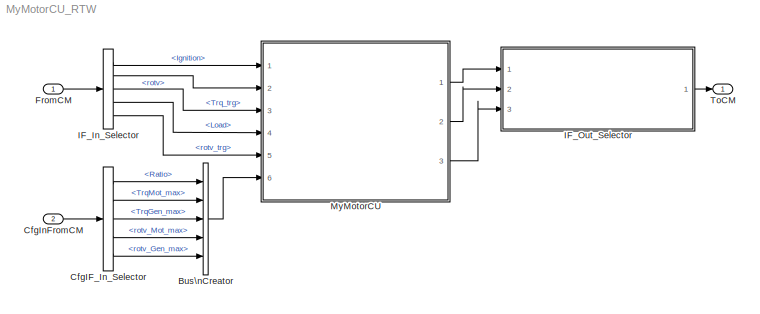
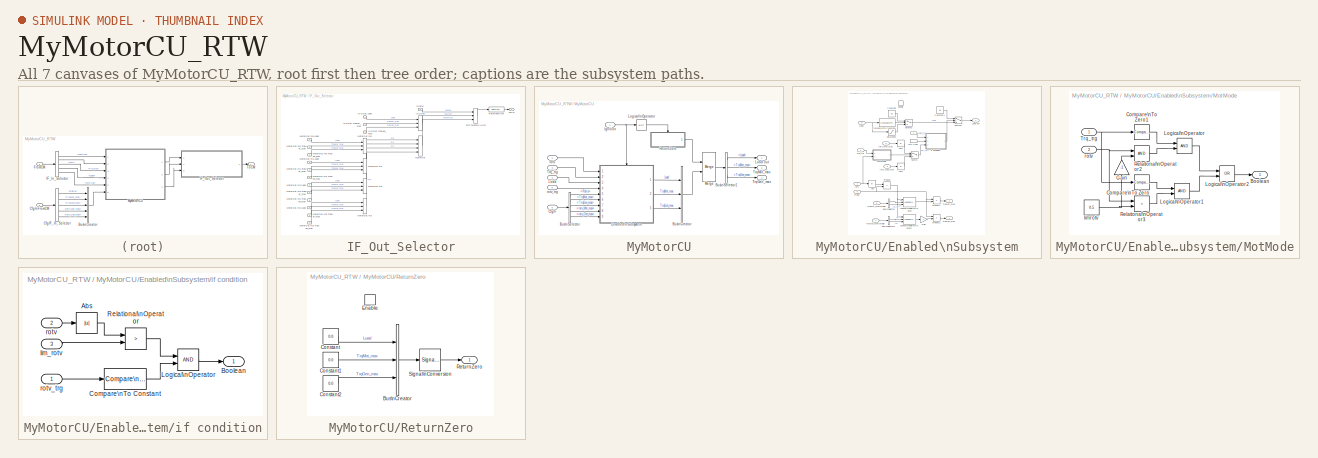
[diagram: thumbnail index - all 7 canvases of the model, root first then tree order]
MODEL MyMotorCU_RTW
KIND model
CONFIG InitFcn = vehicle = 'Car'; if ~length(which('cmcmd')), cmenv; end\nMyMotorCU_RTW_bus
CONFIG PreLoadFcn = vehicle = 'Car'; if ~length(which('cmcmd')), cmenv; end\nMyMotorCU_RTW_bus
BLOCK [BusCreator] Bus\nCreator
  DisplayOption = bar
  InheritFromInputs = on
  Inputs = 5
  Ports = [5, 1]
  SID = 34
BLOCK [BusSelector] CfgIF_In_Selector
  OutputSignals = ISG.Ratio,ISG.TrqMot_max,ISG.TrqGen_max,ISG.rotv_Mot_max,ISG.rotv_Gen_max
  Ports = [1, 5]
  SID = 9
BLOCK [Inport] CfgInFromCM
  OutDataTypeStr = Bus: cmPTMotorCUCfgIn
  Port = 2
  SID = 8
BLOCK [Inport] FromCM
  OutDataTypeStr = Bus: cmPTMotorCUIn
  SID = 1
BLOCK [BusSelector] IF_In_Selector
  OutputSignals = Ignition,ISGIn.rotv,ISGIn.Trq_trg,ISGOut.Load,ISGIn.rotv_trg
  Ports = [1, 5]
  SID = 2
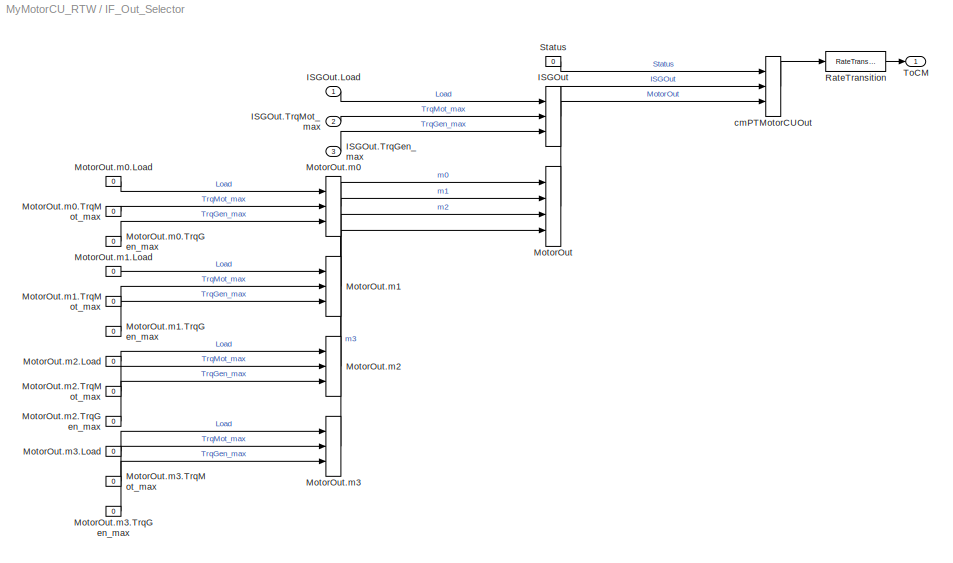
BLOCK [SubSystem] IF_Out_Selector
  OpenFcn = cmSignalSelect('SignalSelection_CB',gcb)
  Ports = [3, 1]
  RequestExecContextInheritance = off
  SID = 5
  UserData = DataTag0
  UserDataPersistent = on
BLOCK [BusCreator] IF_Out_Selector/ISGOut
  InheritFromInputs = on
  Inputs = 3
  Ports = [3, 1]
  SID = 13
BLOCK [Inport] IF_Out_Selector/ISGOut.Load
  SID = 113
BLOCK [Inport] IF_Out_Selector/ISGOut.TrqGen_max
  Port = 3
  SID = 115
BLOCK [Inport] IF_Out_Selector/ISGOut.TrqMot_max
  Port = 2
  SID = 114
BLOCK [BusCreator] IF_Out_Selector/MotorOut
  InheritFromInputs = on
  Inputs = 4
  Ports = [4, 1]
  SID = 17
BLOCK [BusCreator] IF_Out_Selector/MotorOut.m0
  InheritFromInputs = on
  Inputs = 3
  Ports = [3, 1]
  SID = 18
BLOCK [Constant] IF_Out_Selector/MotorOut.m0.Load
  SID = 19
  Value = 0
BLOCK [Constant] IF_Out_Selector/MotorOut.m0.TrqGen_max
  SID = 21
  Value = 0
BLOCK [Constant] IF_Out_Selector/MotorOut.m0.TrqMot_max
  SID = 20
  Value = 0
BLOCK [BusCreator] IF_Out_Selector/MotorOut.m1
  InheritFromInputs = on
  Inputs = 3
  Ports = [3, 1]
  SID = 22
BLOCK [Constant] IF_Out_Selector/MotorOut.m1.Load
  SID = 23
  Value = 0
BLOCK [Constant] IF_Out_Selector/MotorOut.m1.TrqGen_max
  SID = 25
  Value = 0
BLOCK [Constant] IF_Out_Selector/MotorOut.m1.TrqMot_max
  SID = 24
  Value = 0
BLOCK [BusCreator] IF_Out_Selector/MotorOut.m2
  InheritFromInputs = on
  Inputs = 3
  Ports = [3, 1]
  SID = 26
BLOCK [Constant] IF_Out_Selector/MotorOut.m2.Load
  SID = 27
  Value = 0
BLOCK [Constant] IF_Out_Selector/MotorOut.m2.TrqGen_max
  SID = 29
  Value = 0
BLOCK [Constant] IF_Out_Selector/MotorOut.m2.TrqMot_max
  SID = 28
  Value = 0
BLOCK [BusCreator] IF_Out_Selector/MotorOut.m3
  InheritFromInputs = on
  Inputs = 3
  Ports = [3, 1]
  SID = 30
BLOCK [Constant] IF_Out_Selector/MotorOut.m3.Load
  SID = 31
  Value = 0
BLOCK [Constant] IF_Out_Selector/MotorOut.m3.TrqGen_max
  SID = 33
  Value = 0
BLOCK [Constant] IF_Out_Selector/MotorOut.m3.TrqMot_max
  SID = 32
  Value = 0
BLOCK [RateTransition] IF_Out_Selector/RateTransition
  OutPortSampleTime = str2num(get_param(bdroot,'FixedStep'))
  SID = 6
BLOCK [Constant] IF_Out_Selector/Status
  SID = 12
  Value = 0
BLOCK [Outport] IF_Out_Selector/ToCM
  SID = 7
  VectorParamsAs1DForOutWhenUnconnected = off
BLOCK [BusCreator] IF_Out_Selector/cmPTMotorCUOut
  InheritFromInputs = on
  Inputs = 3
  Ports = [3, 1]
  SID = 11
BLOCK [SubSystem] MyMotorCU
  Ports = [6, 3]
  RequestExecContextInheritance = off
  SID = 35
BLOCK [BusCreator] MyMotorCU/Bus\nCreator
  DisplayOption = bar
  InheritFromInputs = on
  Inputs = 3
  Ports = [3, 1]
  SID = 42
BLOCK [BusSelector] MyMotorCU/Bus\nSelector
  OutputSignals = Ratio,TrqMot_max,TrqGen_max,rotv_Mot_max,rotv_Gen_max
  Ports = [1, 5]
  SID = 43
BLOCK [BusSelector] MyMotorCU/Bus\nSelector1
  OutputSignals = Load,TrqMot_max,TrqGen_max
  Ports = [1, 3]
  SID = 44
BLOCK [Inport] MyMotorCU/CfgIF
  Port = 6
  SID = 41
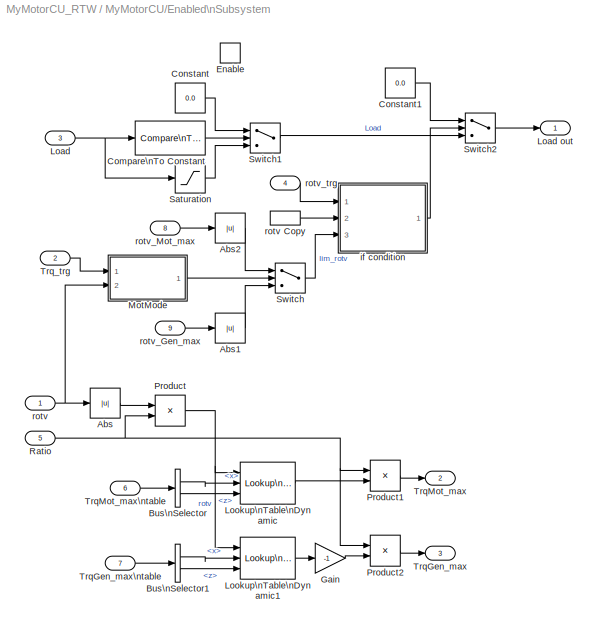
BLOCK [SubSystem] MyMotorCU/Enabled\nSubsystem
  Ports = [9, 3, 1]
  RequestExecContextInheritance = off
  SID = 45
  TreatAsAtomicUnit = on
BLOCK [Abs] MyMotorCU/Enabled\nSubsystem/Abs
  SID = 56
  SaturateOnIntegerOverflow = off
BLOCK [Abs] MyMotorCU/Enabled\nSubsystem/Abs1
  SID = 57
  SaturateOnIntegerOverflow = off
BLOCK [Abs] MyMotorCU/Enabled\nSubsystem/Abs2
  SID = 58
  SaturateOnIntegerOverflow = off
BLOCK [BusSelector] MyMotorCU/Enabled\nSubsystem/Bus\nSelector
  OutputSignals = x,z
  Ports = [1, 2]
  SID = 59
BLOCK [BusSelector] MyMotorCU/Enabled\nSubsystem/Bus\nSelector1
  OutputSignals = x,z
  Ports = [1, 2]
  SID = 60
BLOCK [Reference] MyMotorCU/Enabled\nSubsystem/Compare\nTo Constant  REF=simulink/Logic and Bit\nOperations/Compare\nTo Constant
  FunctionWithSeparateData = off
  LogicOutDataTypeMode = uint8
  Ports = [1, 1]
  RTWMemSecDataConstants = Inherit from model
  RTWMemSecDataInternal = Inherit from model
  RTWMemSecDataParameters = Inherit from model
  RTWMemSecFuncExecute = Inherit from model
  RTWMemSecFuncInitTerm = Inherit from model
  SID = 61
  ShowPortLabels = FromPortIcon
  SourceBlock = simulink/Logic and Bit\nOperations/Compare\nTo Constant
  SourceProductBaseCode = SL
  SourceType = Compare To Constant
  SystemSampleTime = -1
  ZeroCross = off
  const = -99999
  relop = ==
BLOCK [Constant] MyMotorCU/Enabled\nSubsystem/Constant
  SID = 62
  Value = 0.0
BLOCK [Constant] MyMotorCU/Enabled\nSubsystem/Constant1
  SID = 63
  Value = 0.0
BLOCK [EnablePort] MyMotorCU/Enabled\nSubsystem/Enable
  Ports = []
  SID = 55
BLOCK [Gain] MyMotorCU/Enabled\nSubsystem/Gain
  Gain = -1
  SID = 64
BLOCK [Inport] MyMotorCU/Enabled\nSubsystem/Load
  Port = 3
  SID = 48
BLOCK [Outport] MyMotorCU/Enabled\nSubsystem/Load out
  SID = 97
  VectorParamsAs1DForOutWhenUnconnected = off
BLOCK [Reference] MyMotorCU/Enabled\nSubsystem/Lookup\nTable\nDynamic  REF=simulink/Lookup\nTables/Lookup\nTable\nDynamic
  DoSatur = off
  LockScale = off
  LookUpMeth = Interpolation-Use End Values
  OutDataType = float('double')
  OutDataTypeStr = float('double')
  OutScaling = 2^-10
  OutputDataTypeScalingMode = Specify via dialog
  Ports = [3, 1]
  RndMeth = Floor
  SID = 65
  SourceBlock = simulink/Lookup\nTables/Lookup\nTable\nDynamic
  SourceProductBaseCode = SL
  SourceType = Lookup Table Dynamic
BLOCK [Reference] MyMotorCU/Enabled\nSubsystem/Lookup\nTable\nDynamic1  REF=simulink/Lookup\nTables/Lookup\nTable\nDynamic
  DoSatur = off
  LockScale = off
  LookUpMeth = Interpolation-Use End Values
  OutDataType = float('double')
  OutDataTypeStr = float('double')
  OutScaling = 2^-10
  OutputDataTypeScalingMode = Specify via dialog
  Ports = [3, 1]
  RndMeth = Floor
  SID = 66
  SourceBlock = simulink/Lookup\nTables/Lookup\nTable\nDynamic
  SourceProductBaseCode = SL
  SourceType = Lookup Table Dynamic
BLOCK [SubSystem] MyMotorCU/Enabled\nSubsystem/MotMode
  Ports = [2, 1]
  RequestExecContextInheritance = off
  SID = 67
BLOCK [Outport] MyMotorCU/Enabled\nSubsystem/MotMode/Boolean
  SID = 79
  VectorParamsAs1DForOutWhenUnconnected = off
BLOCK [Reference] MyMotorCU/Enabled\nSubsystem/MotMode/Compare\nTo Zero  REF=simulink/Logic and Bit\nOperations/Compare\nTo Zero
  FunctionWithSeparateData = off
  LogicOutDataTypeMode = uint8
  Ports = [1, 1]
  RTWMemSecDataConstants = Inherit from model
  RTWMemSecDataInternal = Inherit from model
  RTWMemSecDataParameters = Inherit from model
  RTWMemSecFuncExecute = Inherit from model
  RTWMemSecFuncInitTerm = Inherit from model
  SID = 70
  ShowPortLabels = FromPortIcon
  SourceBlock = simulink/Logic and Bit\nOperations/Compare\nTo Zero
  SourceProductBaseCode = SL
  SourceType = Compare To Zero
  SystemSampleTime = -1
  ZeroCross = off
  relop = <
BLOCK [Reference] MyMotorCU/Enabled\nSubsystem/MotMode/Compare\nTo Zero1  REF=simulink/Logic and Bit\nOperations/Compare\nTo Zero
  FunctionWithSeparateData = off
  LogicOutDataTypeMode = uint8
  Ports = [1, 1]
  RTWMemSecDataConstants = Inherit from model
  RTWMemSecDataInternal = Inherit from model
  RTWMemSecDataParameters = Inherit from model
  RTWMemSecFuncExecute = Inherit from model
  RTWMemSecFuncInitTerm = Inherit from model
  SID = 71
  ShowPortLabels = FromPortIcon
  SourceBlock = simulink/Logic and Bit\nOperations/Compare\nTo Zero
  SourceProductBaseCode = SL
  SourceType = Compare To Zero
  SystemSampleTime = -1
  ZeroCross = off
  relop = >=
BLOCK [Gain] MyMotorCU/Enabled\nSubsystem/MotMode/Gain
  Gain = -1
  NameLocation = right
  SID = 72
BLOCK [Logic] MyMotorCU/Enabled\nSubsystem/MotMode/Logical\nOperator
  AllPortsSameDT = off
  OutDataTypeStr = boolean
  Ports = [2, 1]
  SID = 73
BLOCK [Logic] MyMotorCU/Enabled\nSubsystem/MotMode/Logical\nOperator1
  AllPortsSameDT = off
  OutDataTypeStr = boolean
  Ports = [2, 1]
  SID = 74
BLOCK [Logic] MyMotorCU/Enabled\nSubsystem/MotMode/Logical\nOperator2
  AllPortsSameDT = off
  Operator = OR
  OutDataTypeStr = boolean
  Ports = [2, 1]
  SID = 75
BLOCK [RelationalOperator] MyMotorCU/Enabled\nSubsystem/MotMode/Relational\nOperator2
  InputSameDT = off
  OutDataTypeStr = boolean
  Ports = [2, 1]
  SID = 76
BLOCK [RelationalOperator] MyMotorCU/Enabled\nSubsystem/MotMode/Relational\nOperator3
  InputSameDT = off
  Operator = <
  OutDataTypeStr = boolean
  Ports = [2, 1]
  SID = 77
BLOCK [Inport] MyMotorCU/Enabled\nSubsystem/MotMode/Trq_trg
  SID = 68
BLOCK [Constant] MyMotorCU/Enabled\nSubsystem/MotMode/limrotv
  SID = 78
  Value = 0.5
BLOCK [Inport] MyMotorCU/Enabled\nSubsystem/MotMode/rotv
  Port = 2
  SID = 69
BLOCK [Product] MyMotorCU/Enabled\nSubsystem/Product
  Ports = [2, 1]
  RndMeth = Zero
  SID = 80
BLOCK [Product] MyMotorCU/Enabled\nSubsystem/Product1
  Ports = [2, 1]
  RndMeth = Zero
  SID = 81
BLOCK [Product] MyMotorCU/Enabled\nSubsystem/Product2
  Ports = [2, 1]
  RndMeth = Zero
  SID = 82
BLOCK [Inport] MyMotorCU/Enabled\nSubsystem/Ratio
  Port = 5
  SID = 50
BLOCK [Saturate] MyMotorCU/Enabled\nSubsystem/Saturation
  LowerLimit = -1
  SID = 83
  UpperLimit = 1
BLOCK [Switch] MyMotorCU/Enabled\nSubsystem/Switch
  Criteria = u2 ~= 0
  InputSameDT = off
  SID = 84
  SaturateOnIntegerOverflow = off
BLOCK [Switch] MyMotorCU/Enabled\nSubsystem/Switch1
  Criteria = u2 ~= 0
  InputSameDT = off
  SID = 85
  SaturateOnIntegerOverflow = off
BLOCK [Switch] MyMotorCU/Enabled\nSubsystem/Switch2
  Criteria = u2 ~= 0
  InputSameDT = off
  SID = 86
  SaturateOnIntegerOverflow = off
BLOCK [Outport] MyMotorCU/Enabled\nSubsystem/TrqGen_max
  Port = 3
  SID = 99
  VectorParamsAs1DForOutWhenUnconnected = off
BLOCK [Inport] MyMotorCU/Enabled\nSubsystem/TrqGen_max\ntable
  Port = 7
  SID = 52
BLOCK [Outport] MyMotorCU/Enabled\nSubsystem/TrqMot_max
  Port = 2
  SID = 98
  VectorParamsAs1DForOutWhenUnconnected = off
BLOCK [Inport] MyMotorCU/Enabled\nSubsystem/TrqMot_max\ntable
  Port = 6
  SID = 51
BLOCK [Inport] MyMotorCU/Enabled\nSubsystem/Trq_trg
  Port = 2
  SID = 47
BLOCK [SubSystem] MyMotorCU/Enabled\nSubsystem/if condition
  Ports = [3, 1]
  RequestExecContextInheritance = off
  SID = 87
BLOCK [Abs] MyMotorCU/Enabled\nSubsystem/if condition/Abs
  SID = 91
  SaturateOnIntegerOverflow = off
BLOCK [Outport] MyMotorCU/Enabled\nSubsystem/if condition/Boolean
  SID = 95
  VectorParamsAs1DForOutWhenUnconnected = off
BLOCK [Reference] MyMotorCU/Enabled\nSubsystem/if condition/Compare\nTo Constant  REF=simulink/Logic and Bit\nOperations/Compare\nTo Constant
  FunctionWithSeparateData = off
  LogicOutDataTypeMode = boolean
  Ports = [1, 1]
  RTWMemSecDataConstants = Inherit from model
  RTWMemSecDataInternal = Inherit from model
  RTWMemSecDataParameters = Inherit from model
  RTWMemSecFuncExecute = Inherit from model
  RTWMemSecFuncInitTerm = Inherit from model
  SID = 92
  ShowPortLabels = FromPortIcon
  SourceBlock = simulink/Logic and Bit\nOperations/Compare\nTo Constant
  SourceProductBaseCode = SL
  SourceType = Compare To Constant
  SystemSampleTime = -1
  ZeroCross = off
  const = -99999
  relop = ==
BLOCK [Logic] MyMotorCU/Enabled\nSubsystem/if condition/Logical\nOperator
  AllPortsSameDT = off
  OutDataTypeStr = boolean
  Ports = [2, 1]
  SID = 93
BLOCK [RelationalOperator] MyMotorCU/Enabled\nSubsystem/if condition/Relational\nOperator
  InputSameDT = off
  Operator = >
  OutDataTypeStr = boolean
  Ports = [2, 1]
  SID = 94
BLOCK [Inport] MyMotorCU/Enabled\nSubsystem/if condition/lim_rotv
  Port = 3
  SID = 90
BLOCK [Inport] MyMotorCU/Enabled\nSubsystem/if condition/rotv
  Port = 2
  SID = 89
BLOCK [Inport] MyMotorCU/Enabled\nSubsystem/if condition/rotv_trg
  SID = 88
BLOCK [Inport] MyMotorCU/Enabled\nSubsystem/rotv
  SID = 46
BLOCK [InportShadow] MyMotorCU/Enabled\nSubsystem/rotv Copy
  SID = 96
BLOCK [Inport] MyMotorCU/Enabled\nSubsystem/rotv_Gen_max
  Port = 9
  SID = 54
BLOCK [Inport] MyMotorCU/Enabled\nSubsystem/rotv_Mot_max
  Port = 8
  SID = 53
BLOCK [Inport] MyMotorCU/Enabled\nSubsystem/rotv_trg
  Port = 4
  SID = 49
BLOCK [Inport] MyMotorCU/Ignition
  SID = 36
BLOCK [Inport] MyMotorCU/Load
  Port = 4
  SID = 39
BLOCK [Outport] MyMotorCU/Load out
  SID = 110
  VectorParamsAs1DForOutWhenUnconnected = off
BLOCK [Logic] MyMotorCU/Logical\nOperator
  AllPortsSameDT = off
  Operator = NOT
  OutDataTypeStr = boolean
  Ports = [1, 1]
  SID = 100
BLOCK [Merge] MyMotorCU/Merge
  Ports = [2, 1]
  SID = 101
BLOCK [SubSystem] MyMotorCU/ReturnZero
  Ports = [0, 1, 1]
  RequestExecContextInheritance = off
  SID = 102
  TreatAsAtomicUnit = on
BLOCK [BusCreator] MyMotorCU/ReturnZero/Bus\nCreator
  DisplayOption = bar
  InheritFromInputs = on
  Inputs = 3
  Ports = [3, 1]
  SID = 104
BLOCK [Constant] MyMotorCU/ReturnZero/Constant
  SID = 105
  Value = 0.0
BLOCK [Constant] MyMotorCU/ReturnZero/Constant1
  SID = 106
  Value = 0.0
BLOCK [Constant] MyMotorCU/ReturnZero/Constant2
  SID = 107
  Value = 0.0
BLOCK [EnablePort] MyMotorCU/ReturnZero/Enable
  Ports = []
  SID = 103
BLOCK [Outport] MyMotorCU/ReturnZero/ReturnZero
  SID = 109
  VectorParamsAs1DForOutWhenUnconnected = off
BLOCK [SignalConversion] MyMotorCU/ReturnZero/Signal\nConversion
  ConversionOutput = Bus copy
  OverrideOpt = off
  SID = 108
BLOCK [Outport] MyMotorCU/TrqGen_max
  Port = 3
  SID = 112
  VectorParamsAs1DForOutWhenUnconnected = off
BLOCK [Outport] MyMotorCU/TrqMot_max
  Port = 2
  SID = 111
  VectorParamsAs1DForOutWhenUnconnected = off
BLOCK [Inport] MyMotorCU/Trq_trg
  Port = 3
  SID = 38
BLOCK [Inport] MyMotorCU/rotv
  Port = 2
  SID = 37
BLOCK [Inport] MyMotorCU/rotv_trg
  Port = 5
  SID = 40
BLOCK [Outport] ToCM
  OutDataTypeStr = Bus: cmPTMotorCUOut
  SID = 4
  VectorParamsAs1DForOutWhenUnconnected = off
LINE Bus\nCreator:1 -> MyMotorCU:6
LINE CfgIF_In_Selector:1 -> Bus\nCreator:1
LINE CfgIF_In_Selector:2 -> Bus\nCreator:2
LINE CfgIF_In_Selector:3 -> Bus\nCreator:3
LINE CfgIF_In_Selector:4 -> Bus\nCreator:4
LINE CfgIF_In_Selector:5 -> Bus\nCreator:5
LINE CfgInFromCM:1 -> CfgIF_In_Selector:1
LINE FromCM:1 -> IF_In_Selector:1
LINE IF_In_Selector:1 -> MyMotorCU:1
LINE IF_In_Selector:2 -> MyMotorCU:2
LINE IF_In_Selector:3 -> MyMotorCU:3
LINE IF_In_Selector:4 -> MyMotorCU:4
LINE IF_In_Selector:5 -> MyMotorCU:5
LINE IF_Out_Selector/ISGOut.Load:1 -> IF_Out_Selector/ISGOut:1
LINE IF_Out_Selector/ISGOut.TrqGen_max:1 -> IF_Out_Selector/ISGOut:3
LINE IF_Out_Selector/ISGOut.TrqMot_max:1 -> IF_Out_Selector/ISGOut:2
LINE IF_Out_Selector/ISGOut:1 -> IF_Out_Selector/cmPTMotorCUOut:2
LINE IF_Out_Selector/MotorOut.m0.Load:1 -> IF_Out_Selector/MotorOut.m0:1
LINE IF_Out_Selector/MotorOut.m0.TrqGen_max:1 -> IF_Out_Selector/MotorOut.m0:3
LINE IF_Out_Selector/MotorOut.m0.TrqMot_max:1 -> IF_Out_Selector/MotorOut.m0:2
LINE IF_Out_Selector/MotorOut.m0:1 -> IF_Out_Selector/MotorOut:1
LINE IF_Out_Selector/MotorOut.m1.Load:1 -> IF_Out_Selector/MotorOut.m1:1
LINE IF_Out_Selector/MotorOut.m1.TrqGen_max:1 -> IF_Out_Selector/MotorOut.m1:3
LINE IF_Out_Selector/MotorOut.m1.TrqMot_max:1 -> IF_Out_Selector/MotorOut.m1:2
LINE IF_Out_Selector/MotorOut.m1:1 -> IF_Out_Selector/MotorOut:2
LINE IF_Out_Selector/MotorOut.m2.Load:1 -> IF_Out_Selector/MotorOut.m2:1
LINE IF_Out_Selector/MotorOut.m2.TrqGen_max:1 -> IF_Out_Selector/MotorOut.m2:3
LINE IF_Out_Selector/MotorOut.m2.TrqMot_max:1 -> IF_Out_Selector/MotorOut.m2:2
LINE IF_Out_Selector/MotorOut.m2:1 -> IF_Out_Selector/MotorOut:3
LINE IF_Out_Selector/MotorOut.m3.Load:1 -> IF_Out_Selector/MotorOut.m3:1
LINE IF_Out_Selector/MotorOut.m3.TrqGen_max:1 -> IF_Out_Selector/MotorOut.m3:3
LINE IF_Out_Selector/MotorOut.m3.TrqMot_max:1 -> IF_Out_Selector/MotorOut.m3:2
LINE IF_Out_Selector/MotorOut.m3:1 -> IF_Out_Selector/MotorOut:4
LINE IF_Out_Selector/MotorOut:1 -> IF_Out_Selector/cmPTMotorCUOut:3
LINE IF_Out_Selector/RateTransition:1 -> IF_Out_Selector/ToCM:1
LINE IF_Out_Selector/Status:1 -> IF_Out_Selector/cmPTMotorCUOut:1
LINE IF_Out_Selector/cmPTMotorCUOut:1 -> IF_Out_Selector/RateTransition:1
LINE IF_Out_Selector:1 -> ToCM:1
LINE MyMotorCU/Bus\nCreator:1 -> MyMotorCU/Merge:2
LINE MyMotorCU/Bus\nSelector1:1 -> MyMotorCU/Load out:1
LINE MyMotorCU/Bus\nSelector1:2 -> MyMotorCU/TrqMot_max:1
LINE MyMotorCU/Bus\nSelector1:3 -> MyMotorCU/TrqGen_max:1
LINE MyMotorCU/Bus\nSelector:1 -> MyMotorCU/Enabled\nSubsystem:5
LINE MyMotorCU/Bus\nSelector:2 -> MyMotorCU/Enabled\nSubsystem:6
LINE MyMotorCU/Bus\nSelector:3 -> MyMotorCU/Enabled\nSubsystem:7
LINE MyMotorCU/Bus\nSelector:4 -> MyMotorCU/Enabled\nSubsystem:8
LINE MyMotorCU/Bus\nSelector:5 -> MyMotorCU/Enabled\nSubsystem:9
LINE MyMotorCU/CfgIF:1 -> MyMotorCU/Bus\nSelector:1
LINE MyMotorCU/Enabled\nSubsystem/Abs1:1 -> MyMotorCU/Enabled\nSubsystem/Switch:3
LINE MyMotorCU/Enabled\nSubsystem/Abs2:1 -> MyMotorCU/Enabled\nSubsystem/Switch:1
LINE MyMotorCU/Enabled\nSubsystem/Abs:1 -> MyMotorCU/Enabled\nSubsystem/Product:1
LINE MyMotorCU/Enabled\nSubsystem/Bus\nSelector1:1 -> MyMotorCU/Enabled\nSubsystem/Lookup\nTable\nDynamic1:2
LINE MyMotorCU/Enabled\nSubsystem/Bus\nSelector1:2 -> MyMotorCU/Enabled\nSubsystem/Lookup\nTable\nDynamic1:3
LINE MyMotorCU/Enabled\nSubsystem/Bus\nSelector:1 -> MyMotorCU/Enabled\nSubsystem/Lookup\nTable\nDynamic:2
LINE MyMotorCU/Enabled\nSubsystem/Bus\nSelector:2 -> MyMotorCU/Enabled\nSubsystem/Lookup\nTable\nDynamic:3
LINE MyMotorCU/Enabled\nSubsystem/Compare\nTo Constant:1 -> MyMotorCU/Enabled\nSubsystem/Switch1:2
LINE MyMotorCU/Enabled\nSubsystem/Constant1:1 -> MyMotorCU/Enabled\nSubsystem/Switch2:1
LINE MyMotorCU/Enabled\nSubsystem/Constant:1 -> MyMotorCU/Enabled\nSubsystem/Switch1:1
LINE MyMotorCU/Enabled\nSubsystem/Gain:1 -> MyMotorCU/Enabled\nSubsystem/Product2:2
NET MyMotorCU/Enabled\nSubsystem/Load:1 -> MyMotorCU/Enabled\nSubsystem/Compare\nTo Constant:1, MyMotorCU/Enabled\nSubsystem/Saturation:1
LINE MyMotorCU/Enabled\nSubsystem/Lookup\nTable\nDynamic1:1 -> MyMotorCU/Enabled\nSubsystem/Gain:1
LINE MyMotorCU/Enabled\nSubsystem/Lookup\nTable\nDynamic:1 -> MyMotorCU/Enabled\nSubsystem/Product1:2
LINE MyMotorCU/Enabled\nSubsystem/MotMode/Compare\nTo Zero1:1 -> MyMotorCU/Enabled\nSubsystem/MotMode/Logical\nOperator:1
LINE MyMotorCU/Enabled\nSubsystem/MotMode/Compare\nTo Zero:1 -> MyMotorCU/Enabled\nSubsystem/MotMode/Logical\nOperator1:1
LINE MyMotorCU/Enabled\nSubsystem/MotMode/Gain:1 -> MyMotorCU/Enabled\nSubsystem/MotMode/Relational\nOperator2:2
LINE MyMotorCU/Enabled\nSubsystem/MotMode/Logical\nOperator1:1 -> MyMotorCU/Enabled\nSubsystem/MotMode/Logical\nOperator2:2
LINE MyMotorCU/Enabled\nSubsystem/MotMode/Logical\nOperator2:1 -> MyMotorCU/Enabled\nSubsystem/MotMode/Boolean:1
LINE MyMotorCU/Enabled\nSubsystem/MotMode/Logical\nOperator:1 -> MyMotorCU/Enabled\nSubsystem/MotMode/Logical\nOperator2:1
LINE MyMotorCU/Enabled\nSubsystem/MotMode/Relational\nOperator2:1 -> MyMotorCU/Enabled\nSubsystem/MotMode/Logical\nOperator:2
LINE MyMotorCU/Enabled\nSubsystem/MotMode/Relational\nOperator3:1 -> MyMotorCU/Enabled\nSubsystem/MotMode/Logical\nOperator1:2
NET MyMotorCU/Enabled\nSubsystem/MotMode/Trq_trg:1 -> MyMotorCU/Enabled\nSubsystem/MotMode/Compare\nTo Zero1:1, MyMotorCU/Enabled\nSubsystem/MotMode/Compare\nTo Zero:1
NET MyMotorCU/Enabled\nSubsystem/MotMode/limrotv:1 -> MyMotorCU/Enabled\nSubsystem/MotMode/Gain:1, MyMotorCU/Enabled\nSubsystem/MotMode/Relational\nOperator3:2
NET MyMotorCU/Enabled\nSubsystem/MotMode/rotv:1 -> MyMotorCU/Enabled\nSubsystem/MotMode/Relational\nOperator2:1, MyMotorCU/Enabled\nSubsystem/MotMode/Relational\nOperator3:1
LINE MyMotorCU/Enabled\nSubsystem/MotMode:1 -> MyMotorCU/Enabled\nSubsystem/Switch:2
LINE MyMotorCU/Enabled\nSubsystem/Product1:1 -> MyMotorCU/Enabled\nSubsystem/TrqMot_max:1
LINE MyMotorCU/Enabled\nSubsystem/Product2:1 -> MyMotorCU/Enabled\nSubsystem/TrqGen_max:1
NET MyMotorCU/Enabled\nSubsystem/Product:1 -> MyMotorCU/Enabled\nSubsystem/Lookup\nTable\nDynamic1:1, MyMotorCU/Enabled\nSubsystem/Lookup\nTable\nDynamic:1
NET MyMotorCU/Enabled\nSubsystem/Ratio:1 -> MyMotorCU/Enabled\nSubsystem/Product1:1, MyMotorCU/Enabled\nSubsystem/Product2:1, MyMotorCU/Enabled\nSubsystem/Product:2
LINE MyMotorCU/Enabled\nSubsystem/Saturation:1 -> MyMotorCU/Enabled\nSubsystem/Switch1:3
LINE MyMotorCU/Enabled\nSubsystem/Switch1:1 -> MyMotorCU/Enabled\nSubsystem/Switch2:3
LINE MyMotorCU/Enabled\nSubsystem/Switch2:1 -> MyMotorCU/Enabled\nSubsystem/Load out:1
LINE MyMotorCU/Enabled\nSubsystem/Switch:1 -> MyMotorCU/Enabled\nSubsystem/if condition:3
LINE MyMotorCU/Enabled\nSubsystem/TrqGen_max\ntable:1 -> MyMotorCU/Enabled\nSubsystem/Bus\nSelector1:1
LINE MyMotorCU/Enabled\nSubsystem/TrqMot_max\ntable:1 -> MyMotorCU/Enabled\nSubsystem/Bus\nSelector:1
LINE MyMotorCU/Enabled\nSubsystem/Trq_trg:1 -> MyMotorCU/Enabled\nSubsystem/MotMode:1
LINE MyMotorCU/Enabled\nSubsystem/if condition/Abs:1 -> MyMotorCU/Enabled\nSubsystem/if condition/Relational\nOperator:1
LINE MyMotorCU/Enabled\nSubsystem/if condition/Compare\nTo Constant:1 -> MyMotorCU/Enabled\nSubsystem/if condition/Logical\nOperator:2
LINE MyMotorCU/Enabled\nSubsystem/if condition/Logical\nOperator:1 -> MyMotorCU/Enabled\nSubsystem/if condition/Boolean:1
LINE MyMotorCU/Enabled\nSubsystem/if condition/Relational\nOperator:1 -> MyMotorCU/Enabled\nSubsystem/if condition/Logical\nOperator:1
LINE MyMotorCU/Enabled\nSubsystem/if condition/lim_rotv:1 -> MyMotorCU/Enabled\nSubsystem/if condition/Relational\nOperator:2
LINE MyMotorCU/Enabled\nSubsystem/if condition/rotv:1 -> MyMotorCU/Enabled\nSubsystem/if condition/Abs:1
LINE MyMotorCU/Enabled\nSubsystem/if condition/rotv_trg:1 -> MyMotorCU/Enabled\nSubsystem/if condition/Compare\nTo Constant:1
LINE MyMotorCU/Enabled\nSubsystem/if condition:1 -> MyMotorCU/Enabled\nSubsystem/Switch2:2
LINE MyMotorCU/Enabled\nSubsystem/rotv Copy:1 -> MyMotorCU/Enabled\nSubsystem/if condition:2
NET MyMotorCU/Enabled\nSubsystem/rotv:1 -> MyMotorCU/Enabled\nSubsystem/Abs:1, MyMotorCU/Enabled\nSubsystem/MotMode:2
LINE MyMotorCU/Enabled\nSubsystem/rotv_Gen_max:1 -> MyMotorCU/Enabled\nSubsystem/Abs1:1
LINE MyMotorCU/Enabled\nSubsystem/rotv_Mot_max:1 -> MyMotorCU/Enabled\nSubsystem/Abs2:1
LINE MyMotorCU/Enabled\nSubsystem/rotv_trg:1 -> MyMotorCU/Enabled\nSubsystem/if condition:1
LINE MyMotorCU/Enabled\nSubsystem:1 -> MyMotorCU/Bus\nCreator:1
LINE MyMotorCU/Enabled\nSubsystem:2 -> MyMotorCU/Bus\nCreator:2
LINE MyMotorCU/Enabled\nSubsystem:3 -> MyMotorCU/Bus\nCreator:3
NET MyMotorCU/Ignition:1 -> MyMotorCU/Enabled\nSubsystem:enable, MyMotorCU/Logical\nOperator:1
LINE MyMotorCU/Load:1 -> MyMotorCU/Enabled\nSubsystem:3
LINE MyMotorCU/Logical\nOperator:1 -> MyMotorCU/ReturnZero:enable
LINE MyMotorCU/Merge:1 -> MyMotorCU/Bus\nSelector1:1
LINE MyMotorCU/ReturnZero/Bus\nCreator:1 -> MyMotorCU/ReturnZero/Signal\nConversion:1
LINE MyMotorCU/ReturnZero/Constant1:1 -> MyMotorCU/ReturnZero/Bus\nCreator:2
LINE MyMotorCU/ReturnZero/Constant2:1 -> MyMotorCU/ReturnZero/Bus\nCreator:3
LINE MyMotorCU/ReturnZero/Constant:1 -> MyMotorCU/ReturnZero/Bus\nCreator:1
LINE MyMotorCU/ReturnZero/Signal\nConversion:1 -> MyMotorCU/ReturnZero/ReturnZero:1
LINE MyMotorCU/ReturnZero:1 -> MyMotorCU/Merge:1
LINE MyMotorCU/Trq_trg:1 -> MyMotorCU/Enabled\nSubsystem:2
LINE MyMotorCU/rotv:1 -> MyMotorCU/Enabled\nSubsystem:1
LINE MyMotorCU/rotv_trg:1 -> MyMotorCU/Enabled\nSubsystem:4
LINE MyMotorCU:1 -> IF_Out_Selector:1
LINE MyMotorCU:2 -> IF_Out_Selector:2
LINE MyMotorCU:3 -> IF_Out_Selector:3
note: NET lines group one-source signal fan-out (src -> all destinations, sorted); 1:1 wires keep LINE
